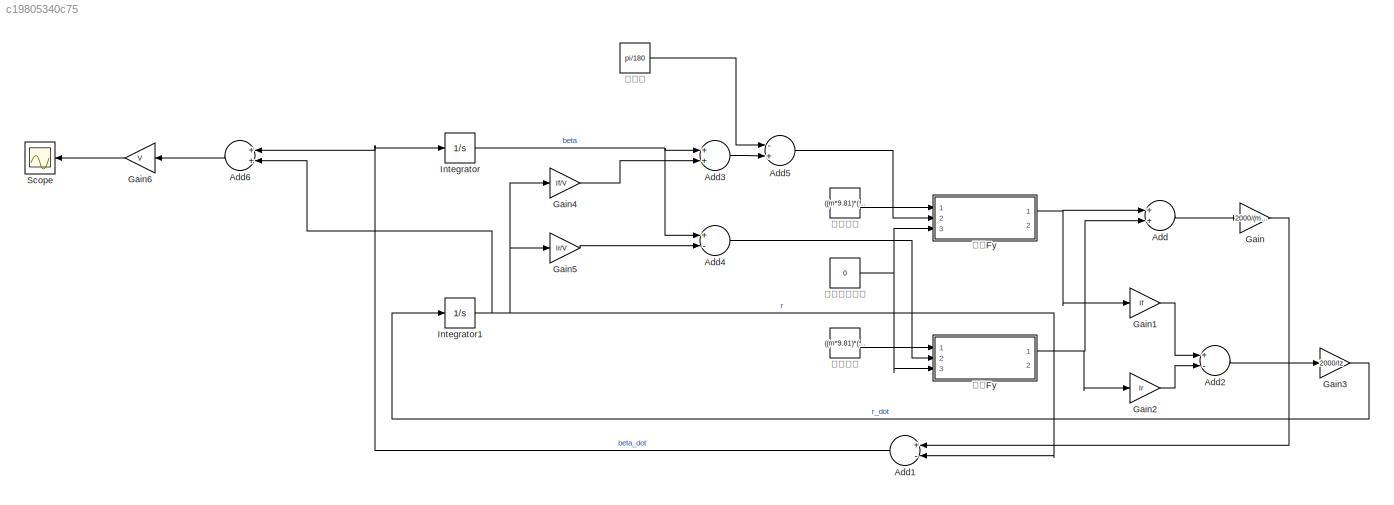
MODEL slx_c19805340c75
KIND model
CONFIG AbsTol = auto
CONFIG EnableMultiTasking = off
CONFIG FixedStep = auto
CONFIG MaxStep = auto
CONFIG MinStep = auto
CONFIG RelTol = 1e-3
CONFIG SampleTimeConstraint = Unconstrained
CONFIG Solver = VariableStepAuto
CONFIG SolverName = VariableStepAuto
CONFIG StartTime = 0.0
CONFIG StopTime = 20
BLOCK [Sum] Add
  InputSameDT = off
  OutDataTypeStr = Inherit: Inherit via internal rule
  Ports = [2, 1]
  SaturateOnIntegerOverflow = off
BLOCK [Sum] Add1
  InputSameDT = off
  Inputs = +-
  OutDataTypeStr = Inherit: Inherit via internal rule
  Ports = [2, 1]
  SaturateOnIntegerOverflow = off
BLOCK [Sum] Add2
  InputSameDT = off
  Inputs = +-
  OutDataTypeStr = Inherit: Inherit via internal rule
  Ports = [2, 1]
  SaturateOnIntegerOverflow = off
BLOCK [Sum] Add3
  InputSameDT = off
  OutDataTypeStr = Inherit: Inherit via internal rule
  Ports = [2, 1]
  SaturateOnIntegerOverflow = off
BLOCK [Sum] Add4
  InputSameDT = off
  Inputs = +-
  OutDataTypeStr = Inherit: Inherit via internal rule
  Ports = [2, 1]
  SaturateOnIntegerOverflow = off
BLOCK [Sum] Add5
  InputSameDT = off
  Inputs = -+
  OutDataTypeStr = Inherit: Inherit via internal rule
  Ports = [2, 1]
  SaturateOnIntegerOverflow = off
BLOCK [Sum] Add6
  InputSameDT = off
  OutDataTypeStr = Inherit: Inherit via internal rule
  Ports = [2, 1]
  SaturateOnIntegerOverflow = off
BLOCK [Gain] Gain
  Gain = 2000/(m*V)
  OutDataTypeStr = Inherit: Inherit via internal rule
  ParamDataTypeStr = Inherit: Inherit via internal rule
  SaturateOnIntegerOverflow = off
BLOCK [Gain] Gain1
  Gain = lf
  OutDataTypeStr = Inherit: Inherit via internal rule
  ParamDataTypeStr = Inherit: Inherit via internal rule
  SaturateOnIntegerOverflow = off
BLOCK [Gain] Gain2
  Gain = lr
  OutDataTypeStr = Inherit: Inherit via internal rule
  ParamDataTypeStr = Inherit: Inherit via internal rule
  SaturateOnIntegerOverflow = off
BLOCK [Gain] Gain3
  Gain = 2000/Iz
  OutDataTypeStr = Inherit: Inherit via internal rule
  ParamDataTypeStr = Inherit: Inherit via internal rule
  SaturateOnIntegerOverflow = off
BLOCK [Gain] Gain4
  Gain = lf/V
  OutDataTypeStr = Inherit: Inherit via internal rule
  ParamDataTypeStr = Inherit: Inherit via internal rule
  SaturateOnIntegerOverflow = off
BLOCK [Gain] Gain5
  Gain = lr/V
  OutDataTypeStr = Inherit: Inherit via internal rule
  ParamDataTypeStr = Inherit: Inherit via internal rule
  SaturateOnIntegerOverflow = off
BLOCK [Gain] Gain6
  Gain = V
  OutDataTypeStr = Inherit: Inherit via internal rule
  ParamDataTypeStr = Inherit: Inherit via internal rule
  SaturateOnIntegerOverflow = off
BLOCK [Integrator] Integrator
  Ports = [1, 1]
BLOCK [Integrator] Integrator1
  Ports = [1, 1]
BLOCK [Scope] Scope
  Floating = off
  NumInputPorts = 1
  Ports = [1]
  ScopeSpecificationString = Simulink.scopes.TimeScopeBlockCfg('CurrentConfiguration', extmgr.ConfigurationSet(extmgr.Configuration('Core','General UI',true),extmgr.Configuration('Core','Source UI',true),extmgr.Configuration('Sources','WiredSimulink',true),extmgr.Configuration('Visuals','Time Domain',true,'SerializedDisplays',{struct('MinYLimReal','-1.0569','MaxYLimReal','10.71167','YLabelReal','','MinYLimMag','0.00000','MaxY...<+1327ch>
BLOCK [Constant] キャンバー角
  Value = 0
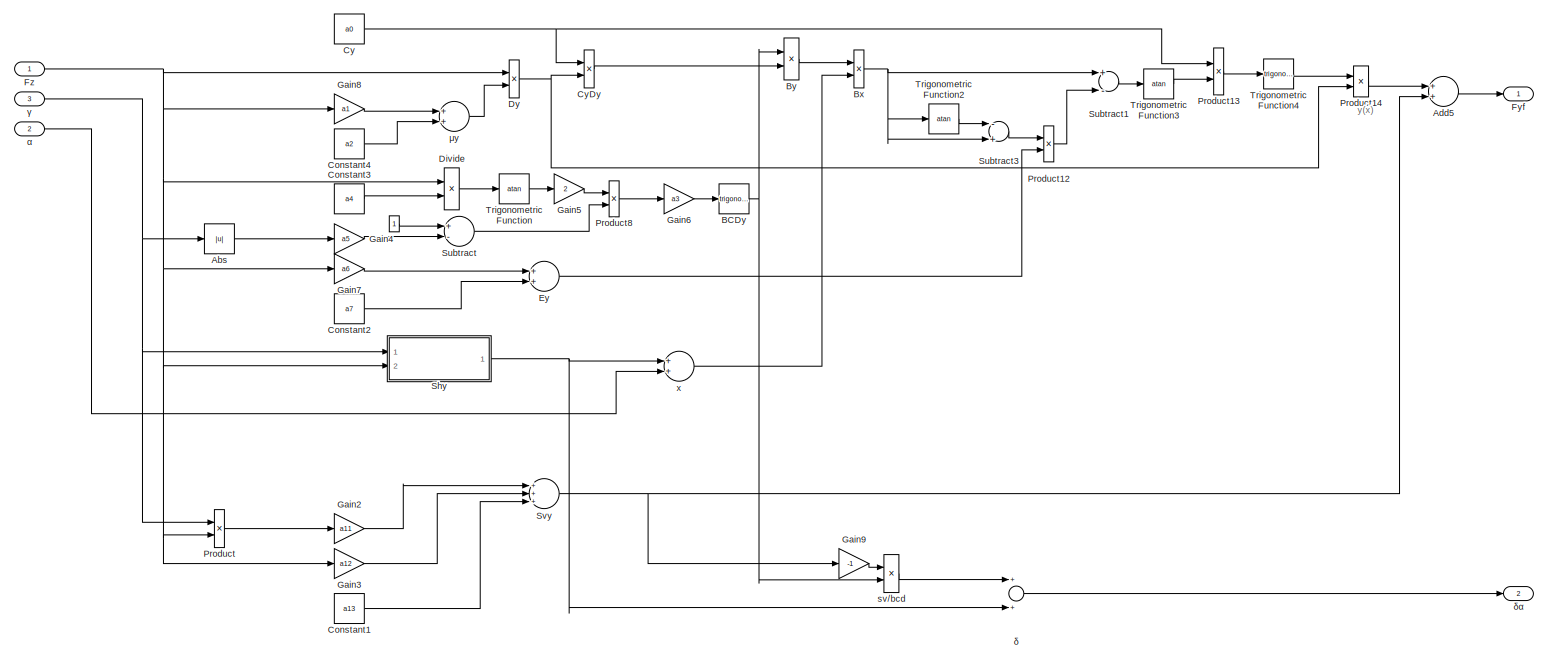
[diagram: 前輪Fy - part 1/1, most of the canvas]
BLOCK [SubSystem] 前輪Fy
  Ports = [3, 2]
  RequestExecContextInheritance = off
BLOCK [Constant] 前輪Fy/ 
BLOCK [Abs] 前輪Fy/Abs
  SaturateOnIntegerOverflow = off
BLOCK [Sum] 前輪Fy/Add5
  InputSameDT = off
  OutDataTypeStr = Inherit: Inherit via internal rule
  Ports = [2, 1]
  SaturateOnIntegerOverflow = off
BLOCK [Trigonometry] 前輪Fy/BCDy
  Ports = [1, 1]
BLOCK [Product] 前輪Fy/Bx
  InputSameDT = off
  OutDataTypeStr = Inherit: Inherit via internal rule
  Ports = [2, 1]
  RndMeth = Floor
  SaturateOnIntegerOverflow = off
BLOCK [Product] 前輪Fy/By
  InputSameDT = off
  Inputs = */
  OutDataTypeStr = Inherit: Inherit via internal rule
  Ports = [2, 1]
  RndMeth = Floor
  SaturateOnIntegerOverflow = off
BLOCK [Constant] 前輪Fy/Constant1
  Value = a13
BLOCK [Constant] 前輪Fy/Constant2
  Value = a7
BLOCK [Constant] 前輪Fy/Constant3
  Value = a4
BLOCK [Constant] 前輪Fy/Constant4
  Value = a2
BLOCK [Constant] 前輪Fy/Cy
  Value = a0
BLOCK [Product] 前輪Fy/CyDy
  InputSameDT = off
  OutDataTypeStr = Inherit: Inherit via internal rule
  Ports = [2, 1]
  RndMeth = Floor
  SaturateOnIntegerOverflow = off
BLOCK [Product] 前輪Fy/Divide
  InputSameDT = off
  Inputs = */
  OutDataTypeStr = Inherit: Inherit via internal rule
  Ports = [2, 1]
  RndMeth = Floor
  SaturateOnIntegerOverflow = off
BLOCK [Product] 前輪Fy/Dy
  InputSameDT = off
  OutDataTypeStr = Inherit: Inherit via internal rule
  Ports = [2, 1]
  RndMeth = Floor
  SaturateOnIntegerOverflow = off
BLOCK [Sum] 前輪Fy/Ey
  InputSameDT = off
  OutDataTypeStr = Inherit: Inherit via internal rule
  Ports = [2, 1]
  SaturateOnIntegerOverflow = off
BLOCK [Outport] 前輪Fy/Fyf
  IconDisplay = Port number
BLOCK [Inport] 前輪Fy/Fz
  IconDisplay = Port number
BLOCK [Gain] 前輪Fy/Gain2
  Gain = a11
  OutDataTypeStr = Inherit: Inherit via internal rule
  ParamDataTypeStr = Inherit: Inherit via internal rule
  SaturateOnIntegerOverflow = off
BLOCK [Gain] 前輪Fy/Gain3
  Gain = a12
  OutDataTypeStr = Inherit: Inherit via internal rule
  ParamDataTypeStr = Inherit: Inherit via internal rule
  SaturateOnIntegerOverflow = off
BLOCK [Gain] 前輪Fy/Gain4
  Gain = a5
  OutDataTypeStr = Inherit: Inherit via internal rule
  ParamDataTypeStr = Inherit: Inherit via internal rule
  SaturateOnIntegerOverflow = off
BLOCK [Gain] 前輪Fy/Gain5
  Gain = 2
  OutDataTypeStr = Inherit: Inherit via internal rule
  ParamDataTypeStr = Inherit: Inherit via internal rule
  SaturateOnIntegerOverflow = off
BLOCK [Gain] 前輪Fy/Gain6
  Gain = a3
  OutDataTypeStr = Inherit: Inherit via internal rule
  ParamDataTypeStr = Inherit: Inherit via internal rule
  SaturateOnIntegerOverflow = off
BLOCK [Gain] 前輪Fy/Gain7
  Gain = a6
  OutDataTypeStr = Inherit: Inherit via internal rule
  ParamDataTypeStr = Inherit: Inherit via internal rule
  SaturateOnIntegerOverflow = off
BLOCK [Gain] 前輪Fy/Gain8
  Gain = a1
  OutDataTypeStr = Inherit: Inherit via internal rule
  ParamDataTypeStr = Inherit: Inherit via internal rule
  SaturateOnIntegerOverflow = off
BLOCK [Gain] 前輪Fy/Gain9
  Gain = -1
  OutDataTypeStr = Inherit: Inherit via internal rule
  ParamDataTypeStr = Inherit: Inherit via internal rule
  SaturateOnIntegerOverflow = off
BLOCK [Product] 前輪Fy/Product
  InputSameDT = off
  OutDataTypeStr = Inherit: Inherit via internal rule
  Ports = [2, 1]
  RndMeth = Floor
  SaturateOnIntegerOverflow = off
BLOCK [Product] 前輪Fy/Product12
  InputSameDT = off
  OutDataTypeStr = Inherit: Inherit via internal rule
  Ports = [2, 1]
  RndMeth = Floor
  SaturateOnIntegerOverflow = off
BLOCK [Product] 前輪Fy/Product13
  InputSameDT = off
  OutDataTypeStr = Inherit: Inherit via internal rule
  Ports = [2, 1]
  RndMeth = Floor
  SaturateOnIntegerOverflow = off
BLOCK [Product] 前輪Fy/Product14
  InputSameDT = off
  OutDataTypeStr = Inherit: Inherit via internal rule
  Ports = [2, 1]
  RndMeth = Floor
  SaturateOnIntegerOverflow = off
BLOCK [Product] 前輪Fy/Product8
  InputSameDT = off
  OutDataTypeStr = Inherit: Inherit via internal rule
  Ports = [2, 1]
  RndMeth = Floor
  SaturateOnIntegerOverflow = off
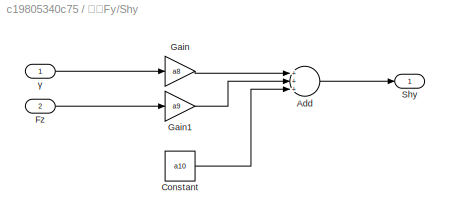
BLOCK [SubSystem] 前輪Fy/Shy
  Ports = [2, 1]
  RequestExecContextInheritance = off
BLOCK [Sum] 前輪Fy/Shy/Add
  InputSameDT = off
  Inputs = +++
  OutDataTypeStr = Inherit: Inherit via internal rule
  Ports = [3, 1]
  SaturateOnIntegerOverflow = off
BLOCK [Constant] 前輪Fy/Shy/Constant
  Value = a10
BLOCK [Inport] 前輪Fy/Shy/Fz
  IconDisplay = Port number
  Port = 2
BLOCK [Gain] 前輪Fy/Shy/Gain
  Gain = a8
  OutDataTypeStr = Inherit: Inherit via internal rule
  ParamDataTypeStr = Inherit: Inherit via internal rule
  SaturateOnIntegerOverflow = off
BLOCK [Gain] 前輪Fy/Shy/Gain1
  Gain = a9
  OutDataTypeStr = Inherit: Inherit via internal rule
  ParamDataTypeStr = Inherit: Inherit via internal rule
  SaturateOnIntegerOverflow = off
BLOCK [Outport] 前輪Fy/Shy/Shy
  IconDisplay = Port number
  VectorParamsAs1DForOutWhenUnconnected = on
BLOCK [Inport] 前輪Fy/Shy/γ
  IconDisplay = Port number
BLOCK [Sum] 前輪Fy/Subtract
  InputSameDT = off
  Inputs = +-
  OutDataTypeStr = Inherit: Inherit via internal rule
  Ports = [2, 1]
  SaturateOnIntegerOverflow = off
BLOCK [Sum] 前輪Fy/Subtract1
  InputSameDT = off
  Inputs = +-
  OutDataTypeStr = Inherit: Inherit via internal rule
  Ports = [2, 1]
  SaturateOnIntegerOverflow = off
BLOCK [Sum] 前輪Fy/Subtract3
  InputSameDT = off
  Inputs = -+
  OutDataTypeStr = Inherit: Inherit via internal rule
  Ports = [2, 1]
  SaturateOnIntegerOverflow = off
BLOCK [Sum] 前輪Fy/Svy
  InputSameDT = off
  Inputs = +++
  OutDataTypeStr = Inherit: Inherit via internal rule
  Ports = [3, 1]
  SaturateOnIntegerOverflow = off
BLOCK [Trigonometry] 前輪Fy/Trigonometric Function
  Operator = atan
  Ports = [1, 1]
BLOCK [Trigonometry] 前輪Fy/Trigonometric Function2
  Operator = atan
  Ports = [1, 1]
BLOCK [Trigonometry] 前輪Fy/Trigonometric Function3
  Operator = atan
  Ports = [1, 1]
BLOCK [Trigonometry] 前輪Fy/Trigonometric Function4
  Ports = [1, 1]
BLOCK [Product] 前輪Fy/sv//bcd
  InputSameDT = off
  Inputs = */
  OutDataTypeStr = Inherit: Inherit via internal rule
  Ports = [2, 1]
  RndMeth = Floor
  SaturateOnIntegerOverflow = off
BLOCK [Sum] 前輪Fy/x
  InputSameDT = off
  OutDataTypeStr = Inherit: Inherit via internal rule
  Ports = [2, 1]
  SaturateOnIntegerOverflow = off
BLOCK [Inport] 前輪Fy/α
  IconDisplay = Port number
  Port = 2
BLOCK [Inport] 前輪Fy/γ
  IconDisplay = Port number
  Port = 3
BLOCK [Sum] 前輪Fy/δ
  InputSameDT = off
  OutDataTypeStr = Inherit: Inherit via internal rule
  Ports = [2, 1]
  SaturateOnIntegerOverflow = off
BLOCK [Outport] 前輪Fy/δα
  IconDisplay = Port number
  Port = 2
BLOCK [Sum] 前輪Fy/μy
  InputSameDT = off
  OutDataTypeStr = Inherit: Inherit via internal rule
  Ports = [2, 1]
  SaturateOnIntegerOverflow = off
BLOCK [Constant] 前輪荷重
  Value = ((m*9.81)*(lr/(lr+lf))*10^-3)/2
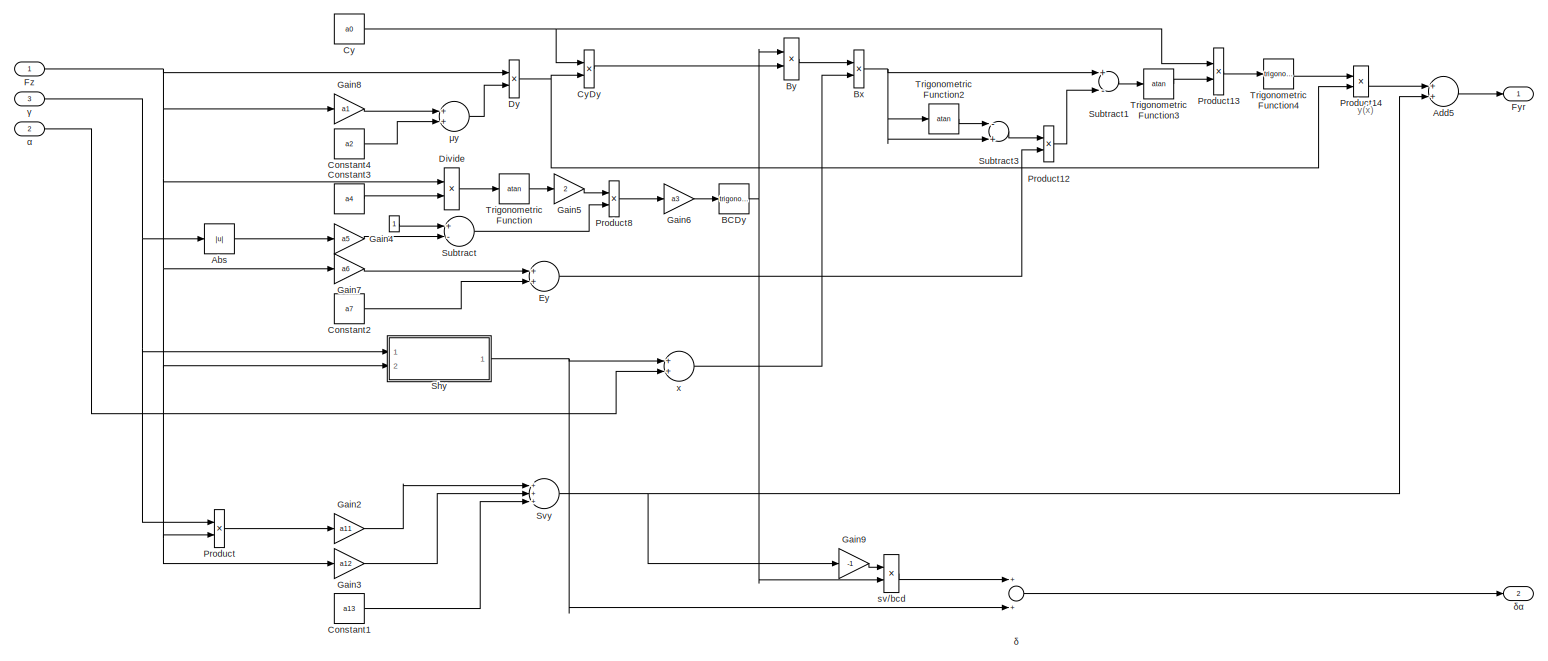
[diagram: 後輪Fy - part 1/1, most of the canvas]
BLOCK [SubSystem] 後輪Fy
  Ports = [3, 2]
  RequestExecContextInheritance = off
BLOCK [Constant] 後輪Fy/ 
BLOCK [Abs] 後輪Fy/Abs
  SaturateOnIntegerOverflow = off
BLOCK [Sum] 後輪Fy/Add5
  InputSameDT = off
  OutDataTypeStr = Inherit: Inherit via internal rule
  Ports = [2, 1]
  SaturateOnIntegerOverflow = off
BLOCK [Trigonometry] 後輪Fy/BCDy
  Ports = [1, 1]
BLOCK [Product] 後輪Fy/Bx
  InputSameDT = off
  OutDataTypeStr = Inherit: Inherit via internal rule
  Ports = [2, 1]
  RndMeth = Floor
  SaturateOnIntegerOverflow = off
BLOCK [Product] 後輪Fy/By
  InputSameDT = off
  Inputs = */
  OutDataTypeStr = Inherit: Inherit via internal rule
  Ports = [2, 1]
  RndMeth = Floor
  SaturateOnIntegerOverflow = off
BLOCK [Constant] 後輪Fy/Constant1
  Value = a13
BLOCK [Constant] 後輪Fy/Constant2
  Value = a7
BLOCK [Constant] 後輪Fy/Constant3
  Value = a4
BLOCK [Constant] 後輪Fy/Constant4
  Value = a2
BLOCK [Constant] 後輪Fy/Cy
  Value = a0
BLOCK [Product] 後輪Fy/CyDy
  InputSameDT = off
  OutDataTypeStr = Inherit: Inherit via internal rule
  Ports = [2, 1]
  RndMeth = Floor
  SaturateOnIntegerOverflow = off
BLOCK [Product] 後輪Fy/Divide
  InputSameDT = off
  Inputs = */
  OutDataTypeStr = Inherit: Inherit via internal rule
  Ports = [2, 1]
  RndMeth = Floor
  SaturateOnIntegerOverflow = off
BLOCK [Product] 後輪Fy/Dy
  InputSameDT = off
  OutDataTypeStr = Inherit: Inherit via internal rule
  Ports = [2, 1]
  RndMeth = Floor
  SaturateOnIntegerOverflow = off
BLOCK [Sum] 後輪Fy/Ey
  InputSameDT = off
  OutDataTypeStr = Inherit: Inherit via internal rule
  Ports = [2, 1]
  SaturateOnIntegerOverflow = off
BLOCK [Outport] 後輪Fy/Fyr
  IconDisplay = Port number
BLOCK [Inport] 後輪Fy/Fz
  IconDisplay = Port number
BLOCK [Gain] 後輪Fy/Gain2
  Gain = a11
  OutDataTypeStr = Inherit: Inherit via internal rule
  ParamDataTypeStr = Inherit: Inherit via internal rule
  SaturateOnIntegerOverflow = off
BLOCK [Gain] 後輪Fy/Gain3
  Gain = a12
  OutDataTypeStr = Inherit: Inherit via internal rule
  ParamDataTypeStr = Inherit: Inherit via internal rule
  SaturateOnIntegerOverflow = off
BLOCK [Gain] 後輪Fy/Gain4
  Gain = a5
  OutDataTypeStr = Inherit: Inherit via internal rule
  ParamDataTypeStr = Inherit: Inherit via internal rule
  SaturateOnIntegerOverflow = off
BLOCK [Gain] 後輪Fy/Gain5
  Gain = 2
  OutDataTypeStr = Inherit: Inherit via internal rule
  ParamDataTypeStr = Inherit: Inherit via internal rule
  SaturateOnIntegerOverflow = off
BLOCK [Gain] 後輪Fy/Gain6
  Gain = a3
  OutDataTypeStr = Inherit: Inherit via internal rule
  ParamDataTypeStr = Inherit: Inherit via internal rule
  SaturateOnIntegerOverflow = off
BLOCK [Gain] 後輪Fy/Gain7
  Gain = a6
  OutDataTypeStr = Inherit: Inherit via internal rule
  ParamDataTypeStr = Inherit: Inherit via internal rule
  SaturateOnIntegerOverflow = off
BLOCK [Gain] 後輪Fy/Gain8
  Gain = a1
  OutDataTypeStr = Inherit: Inherit via internal rule
  ParamDataTypeStr = Inherit: Inherit via internal rule
  SaturateOnIntegerOverflow = off
BLOCK [Gain] 後輪Fy/Gain9
  Gain = -1
  OutDataTypeStr = Inherit: Inherit via internal rule
  ParamDataTypeStr = Inherit: Inherit via internal rule
  SaturateOnIntegerOverflow = off
BLOCK [Product] 後輪Fy/Product
  InputSameDT = off
  OutDataTypeStr = Inherit: Inherit via internal rule
  Ports = [2, 1]
  RndMeth = Floor
  SaturateOnIntegerOverflow = off
BLOCK [Product] 後輪Fy/Product12
  InputSameDT = off
  OutDataTypeStr = Inherit: Inherit via internal rule
  Ports = [2, 1]
  RndMeth = Floor
  SaturateOnIntegerOverflow = off
BLOCK [Product] 後輪Fy/Product13
  InputSameDT = off
  OutDataTypeStr = Inherit: Inherit via internal rule
  Ports = [2, 1]
  RndMeth = Floor
  SaturateOnIntegerOverflow = off
BLOCK [Product] 後輪Fy/Product14
  InputSameDT = off
  OutDataTypeStr = Inherit: Inherit via internal rule
  Ports = [2, 1]
  RndMeth = Floor
  SaturateOnIntegerOverflow = off
BLOCK [Product] 後輪Fy/Product8
  InputSameDT = off
  OutDataTypeStr = Inherit: Inherit via internal rule
  Ports = [2, 1]
  RndMeth = Floor
  SaturateOnIntegerOverflow = off
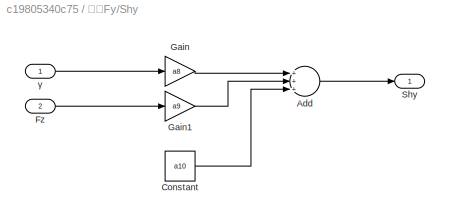
BLOCK [SubSystem] 後輪Fy/Shy
  Ports = [2, 1]
  RequestExecContextInheritance = off
BLOCK [Sum] 後輪Fy/Shy/Add
  InputSameDT = off
  Inputs = +++
  OutDataTypeStr = Inherit: Inherit via internal rule
  Ports = [3, 1]
  SaturateOnIntegerOverflow = off
BLOCK [Constant] 後輪Fy/Shy/Constant
  Value = a10
BLOCK [Inport] 後輪Fy/Shy/Fz
  IconDisplay = Port number
  Port = 2
BLOCK [Gain] 後輪Fy/Shy/Gain
  Gain = a8
  OutDataTypeStr = Inherit: Inherit via internal rule
  ParamDataTypeStr = Inherit: Inherit via internal rule
  SaturateOnIntegerOverflow = off
BLOCK [Gain] 後輪Fy/Shy/Gain1
  Gain = a9
  OutDataTypeStr = Inherit: Inherit via internal rule
  ParamDataTypeStr = Inherit: Inherit via internal rule
  SaturateOnIntegerOverflow = off
BLOCK [Outport] 後輪Fy/Shy/Shy
  IconDisplay = Port number
  VectorParamsAs1DForOutWhenUnconnected = on
BLOCK [Inport] 後輪Fy/Shy/γ
  IconDisplay = Port number
BLOCK [Sum] 後輪Fy/Subtract
  InputSameDT = off
  Inputs = +-
  OutDataTypeStr = Inherit: Inherit via internal rule
  Ports = [2, 1]
  SaturateOnIntegerOverflow = off
BLOCK [Sum] 後輪Fy/Subtract1
  InputSameDT = off
  Inputs = +-
  OutDataTypeStr = Inherit: Inherit via internal rule
  Ports = [2, 1]
  SaturateOnIntegerOverflow = off
BLOCK [Sum] 後輪Fy/Subtract3
  InputSameDT = off
  Inputs = -+
  OutDataTypeStr = Inherit: Inherit via internal rule
  Ports = [2, 1]
  SaturateOnIntegerOverflow = off
BLOCK [Sum] 後輪Fy/Svy
  InputSameDT = off
  Inputs = +++
  OutDataTypeStr = Inherit: Inherit via internal rule
  Ports = [3, 1]
  SaturateOnIntegerOverflow = off
BLOCK [Trigonometry] 後輪Fy/Trigonometric Function
  Operator = atan
  Ports = [1, 1]
BLOCK [Trigonometry] 後輪Fy/Trigonometric Function2
  Operator = atan
  Ports = [1, 1]
BLOCK [Trigonometry] 後輪Fy/Trigonometric Function3
  Operator = atan
  Ports = [1, 1]
BLOCK [Trigonometry] 後輪Fy/Trigonometric Function4
  Ports = [1, 1]
BLOCK [Product] 後輪Fy/sv//bcd
  InputSameDT = off
  Inputs = */
  OutDataTypeStr = Inherit: Inherit via internal rule
  Ports = [2, 1]
  RndMeth = Floor
  SaturateOnIntegerOverflow = off
BLOCK [Sum] 後輪Fy/x
  InputSameDT = off
  OutDataTypeStr = Inherit: Inherit via internal rule
  Ports = [2, 1]
  SaturateOnIntegerOverflow = off
BLOCK [Inport] 後輪Fy/α
  IconDisplay = Port number
  Port = 2
BLOCK [Inport] 後輪Fy/γ
  IconDisplay = Port number
  Port = 3
BLOCK [Sum] 後輪Fy/δ
  InputSameDT = off
  OutDataTypeStr = Inherit: Inherit via internal rule
  Ports = [2, 1]
  SaturateOnIntegerOverflow = off
BLOCK [Outport] 後輪Fy/δα
  IconDisplay = Port number
  Port = 2
BLOCK [Sum] 後輪Fy/μy
  InputSameDT = off
  OutDataTypeStr = Inherit: Inherit via internal rule
  Ports = [2, 1]
  SaturateOnIntegerOverflow = off
BLOCK [Constant] 後輪荷重
  Value = ((m*9.81)*(lf/(lr+lf))*10^-3)/2
BLOCK [Constant] 操舵角
  Value = pi/180
ANNOTATION 前輪Fy: y(x)
ANNOTATION 後輪Fy: y(x)
NET Add1:1 -> Add6:1, Integrator:1
LINE Add2:1 -> Gain3:1
LINE Add3:1 -> Add5:2
LINE Add4:1 -> 後輪Fy:2
LINE Add5:1 -> 前輪Fy:2
LINE Add6:1 -> Gain6:1
LINE Add:1 -> Gain:1
LINE Gain1:1 -> Add2:1
LINE Gain2:1 -> Add2:2
LINE Gain3:1 -> Integrator1:1
LINE Gain4:1 -> Add3:2
LINE Gain5:1 -> Add4:2
LINE Gain6:1 -> Scope:1
LINE Gain:1 -> Add1:1
NET Integrator1:1 -> Add1:2, Add6:2, Gain4:1, Gain5:1
NET Integrator:1 -> Add3:1, Add4:1
NET キャンバー角:1 -> 前輪Fy:3, 後輪Fy:3
LINE 前輪Fy/ :1 -> 前輪Fy/Subtract:1
LINE 前輪Fy/Abs:1 -> 前輪Fy/Gain4:1
LINE 前輪Fy/Add5:1 -> 前輪Fy/Fyf:1
NET 前輪Fy/BCDy:1 -> 前輪Fy/By:1, 前輪Fy/sv//bcd:2
NET 前輪Fy/Bx:1 -> 前輪Fy/Subtract1:1, 前輪Fy/Subtract3:2, 前輪Fy/Trigonometric Function2:1
LINE 前輪Fy/By:1 -> 前輪Fy/Bx:1
LINE 前輪Fy/Constant1:1 -> 前輪Fy/Svy:3
LINE 前輪Fy/Constant2:1 -> 前輪Fy/Ey:2
LINE 前輪Fy/Constant3:1 -> 前輪Fy/Divide:2
LINE 前輪Fy/Constant4:1 -> 前輪Fy/μy:2
NET 前輪Fy/Cy:1 -> 前輪Fy/CyDy:1, 前輪Fy/Product13:1
LINE 前輪Fy/CyDy:1 -> 前輪Fy/By:2
LINE 前輪Fy/Divide:1 -> 前輪Fy/Trigonometric Function:1
NET 前輪Fy/Dy:1 -> 前輪Fy/CyDy:2, 前輪Fy/Product14:2
LINE 前輪Fy/Ey:1 -> 前輪Fy/Product12:2
NET 前輪Fy/Fz:1 -> 前輪Fy/Divide:1, 前輪Fy/Dy:1, 前輪Fy/Gain3:1, 前輪Fy/Gain7:1, 前輪Fy/Gain8:1, 前輪Fy/Product:2, 前輪Fy/Shy:2
LINE 前輪Fy/Gain2:1 -> 前輪Fy/Svy:1
LINE 前輪Fy/Gain3:1 -> 前輪Fy/Svy:2
LINE 前輪Fy/Gain4:1 -> 前輪Fy/Subtract:2
LINE 前輪Fy/Gain5:1 -> 前輪Fy/Product8:1
LINE 前輪Fy/Gain6:1 -> 前輪Fy/BCDy:1
LINE 前輪Fy/Gain7:1 -> 前輪Fy/Ey:1
LINE 前輪Fy/Gain8:1 -> 前輪Fy/μy:1
LINE 前輪Fy/Gain9:1 -> 前輪Fy/sv//bcd:1
LINE 前輪Fy/Product12:1 -> 前輪Fy/Subtract1:2
LINE 前輪Fy/Product13:1 -> 前輪Fy/Trigonometric Function4:1
LINE 前輪Fy/Product14:1 -> 前輪Fy/Add5:1
LINE 前輪Fy/Product8:1 -> 前輪Fy/Gain6:1
LINE 前輪Fy/Product:1 -> 前輪Fy/Gain2:1
LINE 前輪Fy/Shy/Add:1 -> 前輪Fy/Shy/Shy:1
LINE 前輪Fy/Shy/Constant:1 -> 前輪Fy/Shy/Add:3
LINE 前輪Fy/Shy/Fz:1 -> 前輪Fy/Shy/Gain1:1
LINE 前輪Fy/Shy/Gain1:1 -> 前輪Fy/Shy/Add:2
LINE 前輪Fy/Shy/Gain:1 -> 前輪Fy/Shy/Add:1
LINE 前輪Fy/Shy/γ:1 -> 前輪Fy/Shy/Gain:1
NET 前輪Fy/Shy:1 -> 前輪Fy/x:1, 前輪Fy/δ:2
LINE 前輪Fy/Subtract1:1 -> 前輪Fy/Trigonometric Function3:1
LINE 前輪Fy/Subtract3:1 -> 前輪Fy/Product12:1
LINE 前輪Fy/Subtract:1 -> 前輪Fy/Product8:2
NET 前輪Fy/Svy:1 -> 前輪Fy/Add5:2, 前輪Fy/Gain9:1
LINE 前輪Fy/Trigonometric Function2:1 -> 前輪Fy/Subtract3:1
LINE 前輪Fy/Trigonometric Function3:1 -> 前輪Fy/Product13:2
LINE 前輪Fy/Trigonometric Function4:1 -> 前輪Fy/Product14:1
LINE 前輪Fy/Trigonometric Function:1 -> 前輪Fy/Gain5:1
LINE 前輪Fy/sv//bcd:1 -> 前輪Fy/δ:1
LINE 前輪Fy/x:1 -> 前輪Fy/Bx:2
LINE 前輪Fy/α:1 -> 前輪Fy/x:2
NET 前輪Fy/γ:1 -> 前輪Fy/Abs:1, 前輪Fy/Product:1, 前輪Fy/Shy:1
LINE 前輪Fy/δ:1 -> 前輪Fy/δα:1
LINE 前輪Fy/μy:1 -> 前輪Fy/Dy:2
NET 前輪Fy:1 -> Add:1, Gain1:1
LINE 前輪荷重:1 -> 前輪Fy:1
LINE 後輪Fy/ :1 -> 後輪Fy/Subtract:1
LINE 後輪Fy/Abs:1 -> 後輪Fy/Gain4:1
LINE 後輪Fy/Add5:1 -> 後輪Fy/Fyr:1
NET 後輪Fy/BCDy:1 -> 後輪Fy/By:1, 後輪Fy/sv//bcd:2
NET 後輪Fy/Bx:1 -> 後輪Fy/Subtract1:1, 後輪Fy/Subtract3:2, 後輪Fy/Trigonometric Function2:1
LINE 後輪Fy/By:1 -> 後輪Fy/Bx:1
LINE 後輪Fy/Constant1:1 -> 後輪Fy/Svy:3
LINE 後輪Fy/Constant2:1 -> 後輪Fy/Ey:2
LINE 後輪Fy/Constant3:1 -> 後輪Fy/Divide:2
LINE 後輪Fy/Constant4:1 -> 後輪Fy/μy:2
NET 後輪Fy/Cy:1 -> 後輪Fy/CyDy:1, 後輪Fy/Product13:1
LINE 後輪Fy/CyDy:1 -> 後輪Fy/By:2
LINE 後輪Fy/Divide:1 -> 後輪Fy/Trigonometric Function:1
NET 後輪Fy/Dy:1 -> 後輪Fy/CyDy:2, 後輪Fy/Product14:2
LINE 後輪Fy/Ey:1 -> 後輪Fy/Product12:2
NET 後輪Fy/Fz:1 -> 後輪Fy/Divide:1, 後輪Fy/Dy:1, 後輪Fy/Gain3:1, 後輪Fy/Gain7:1, 後輪Fy/Gain8:1, 後輪Fy/Product:2, 後輪Fy/Shy:2
LINE 後輪Fy/Gain2:1 -> 後輪Fy/Svy:1
LINE 後輪Fy/Gain3:1 -> 後輪Fy/Svy:2
LINE 後輪Fy/Gain4:1 -> 後輪Fy/Subtract:2
LINE 後輪Fy/Gain5:1 -> 後輪Fy/Product8:1
LINE 後輪Fy/Gain6:1 -> 後輪Fy/BCDy:1
LINE 後輪Fy/Gain7:1 -> 後輪Fy/Ey:1
LINE 後輪Fy/Gain8:1 -> 後輪Fy/μy:1
LINE 後輪Fy/Gain9:1 -> 後輪Fy/sv//bcd:1
LINE 後輪Fy/Product12:1 -> 後輪Fy/Subtract1:2
LINE 後輪Fy/Product13:1 -> 後輪Fy/Trigonometric Function4:1
LINE 後輪Fy/Product14:1 -> 後輪Fy/Add5:1
LINE 後輪Fy/Product8:1 -> 後輪Fy/Gain6:1
LINE 後輪Fy/Product:1 -> 後輪Fy/Gain2:1
LINE 後輪Fy/Shy/Add:1 -> 後輪Fy/Shy/Shy:1
LINE 後輪Fy/Shy/Constant:1 -> 後輪Fy/Shy/Add:3
LINE 後輪Fy/Shy/Fz:1 -> 後輪Fy/Shy/Gain1:1
LINE 後輪Fy/Shy/Gain1:1 -> 後輪Fy/Shy/Add:2
LINE 後輪Fy/Shy/Gain:1 -> 後輪Fy/Shy/Add:1
LINE 後輪Fy/Shy/γ:1 -> 後輪Fy/Shy/Gain:1
NET 後輪Fy/Shy:1 -> 後輪Fy/x:1, 後輪Fy/δ:2
LINE 後輪Fy/Subtract1:1 -> 後輪Fy/Trigonometric Function3:1
LINE 後輪Fy/Subtract3:1 -> 後輪Fy/Product12:1
LINE 後輪Fy/Subtract:1 -> 後輪Fy/Product8:2
NET 後輪Fy/Svy:1 -> 後輪Fy/Add5:2, 後輪Fy/Gain9:1
LINE 後輪Fy/Trigonometric Function2:1 -> 後輪Fy/Subtract3:1
LINE 後輪Fy/Trigonometric Function3:1 -> 後輪Fy/Product13:2
LINE 後輪Fy/Trigonometric Function4:1 -> 後輪Fy/Product14:1
LINE 後輪Fy/Trigonometric Function:1 -> 後輪Fy/Gain5:1
LINE 後輪Fy/sv//bcd:1 -> 後輪Fy/δ:1
LINE 後輪Fy/x:1 -> 後輪Fy/Bx:2
LINE 後輪Fy/α:1 -> 後輪Fy/x:2
NET 後輪Fy/γ:1 -> 後輪Fy/Abs:1, 後輪Fy/Product:1, 後輪Fy/Shy:1
LINE 後輪Fy/δ:1 -> 後輪Fy/δα:1
LINE 後輪Fy/μy:1 -> 後輪Fy/Dy:2
NET 後輪Fy:1 -> Add:2, Gain2:1
LINE 後輪荷重:1 -> 後輪Fy:1
LINE 操舵角:1 -> Add5:1
note: NET lines group one-source signal fan-out (src -> all destinations, sorted); 1:1 wires keep LINE
